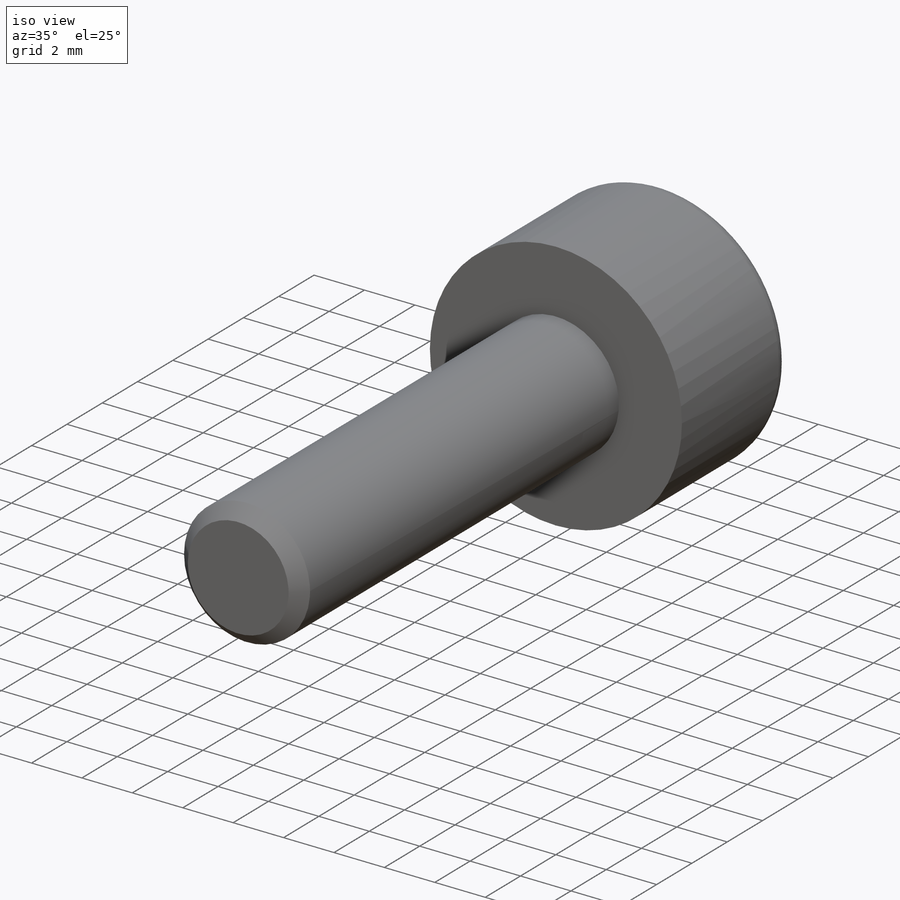
[diagram: iso view]
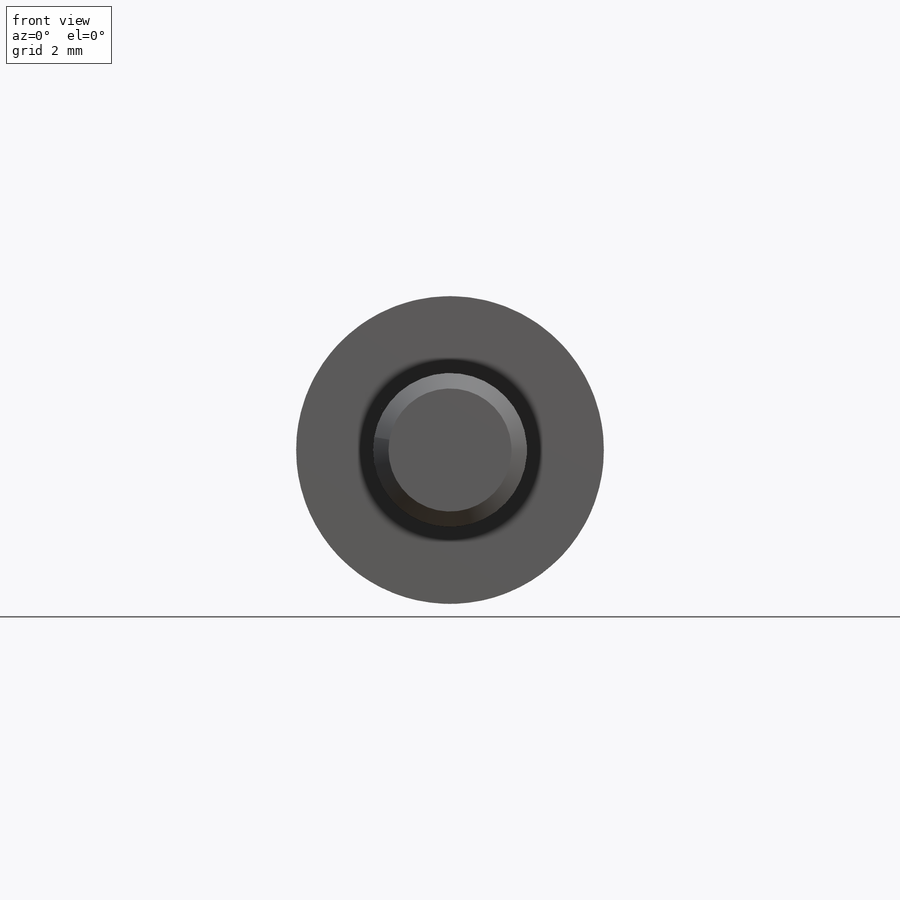
[diagram: front view]
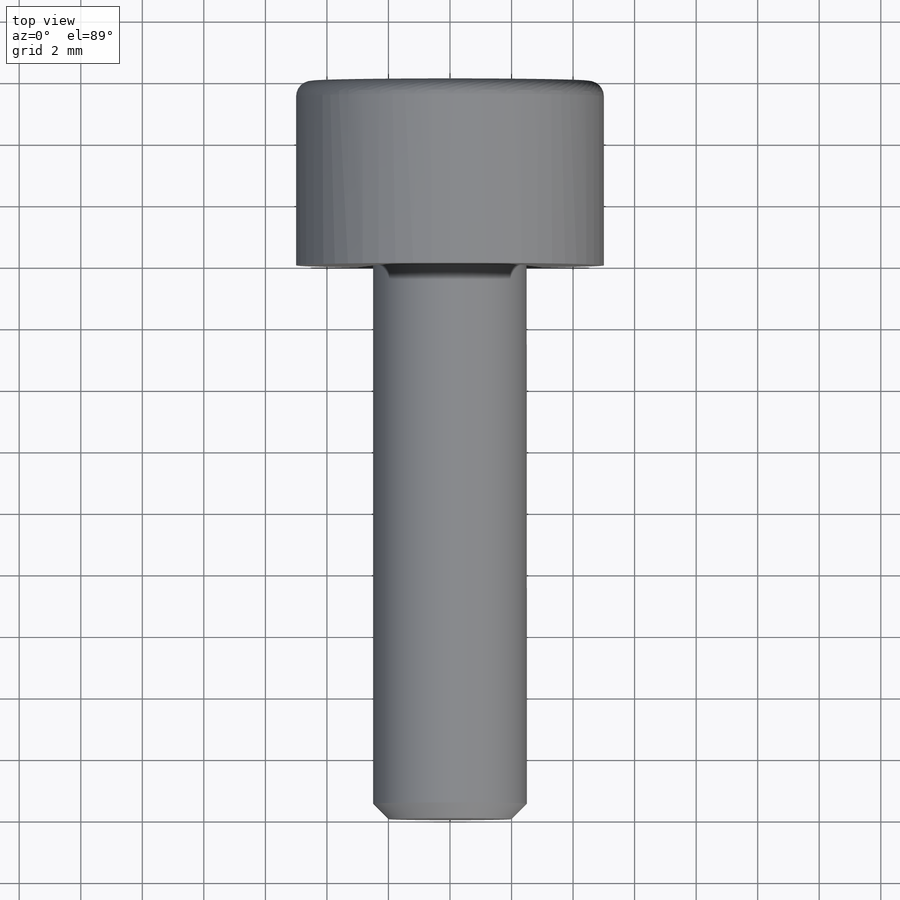
[diagram: top view]
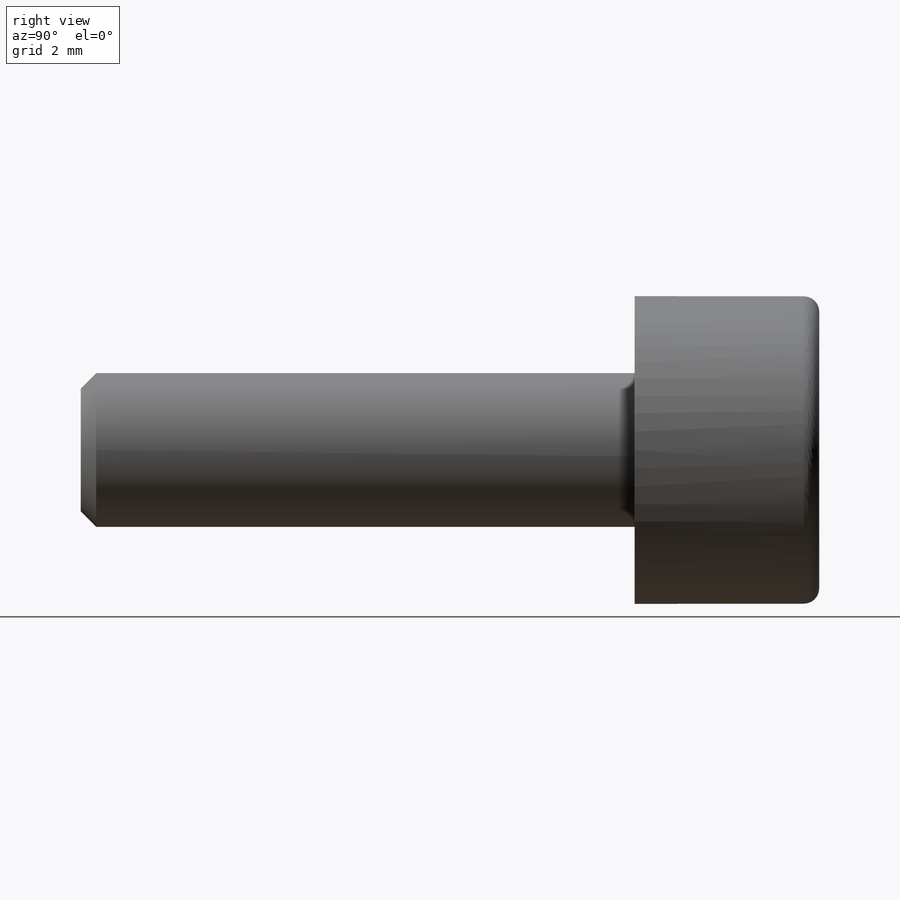
[diagram: right view]
SOLIDWORKS PART (.sldprt)
format: sldprt  version: not decoded by parser v0  size: 168,448 bytes
history: native  units: mm
features: sketch x4, plane x3, extrude x2, cut_extrude x2, material x1, thread x1, chamfer x1, fillet x1 + 1 further entry (+8 scaffold rows collapsed)
feature tree (24):
  scaffold x8  (default folders/planes/origin — collapsed)
  material  "Matériau <non spécifié>"
  "Corps de surface"
  plane  "Plan1"
  plane  "Plan2"
  plane  "Plan3"
  sketch  "Esquisse1"  dims[D1=5.0mm]
  extrude  "Base-Extrusion"  [1 undecoded]
  thread  "Représentation de filetage1"  Diameter=16mm  [1 undecoded]
  chamfer  "Chanfrein1"  Distance=0.5mm Angle=45deg
  sketch  "Esquisse2"  dims[D1=10.0mm]
  extrude  "Boss.-Extru.1"  Depth=6mm
  sketch  "Esquisse3"  dims[c1.D1=6.0mm c1.D2=3.45mm c2.D2=120.0deg]
  cut_extrude  "Enlèv. mat.-Extru.1"  Depth=3mm
  sketch  "Esquisse4"
  cut_extrude  "Enlèv. mat.-Extru.2"  Depth=0.5mm
  fillet  "Congé1"  Radius=0.5mm
decode coverage: 9 of 11 modeling features carry decoded parameters; 1 rows unclassified (native names shown)
note: 2 parameter values undecoded
note: suppression state not decoded; provenance and decode notes live in map.json
